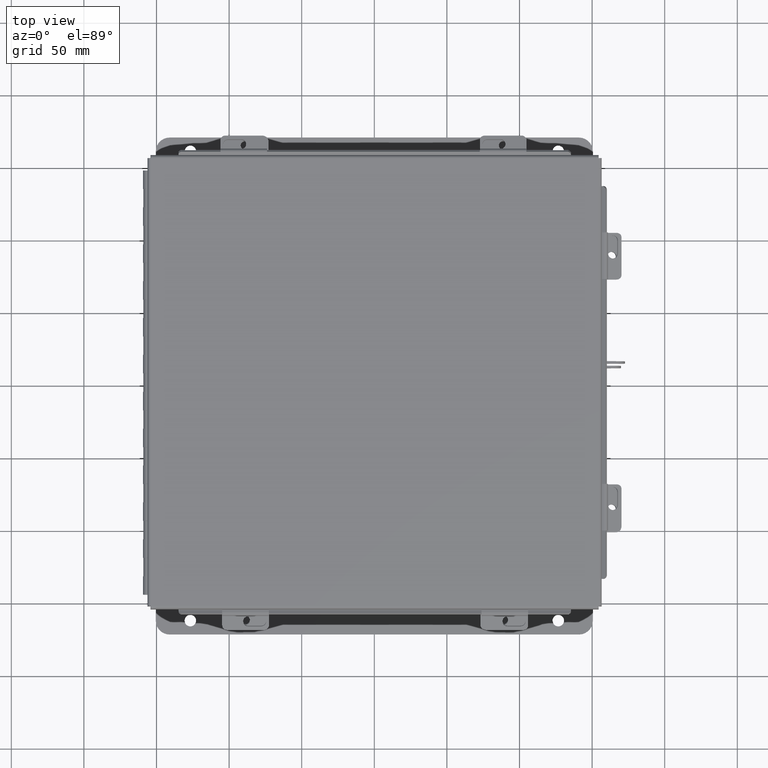
[diagram: clean part render]
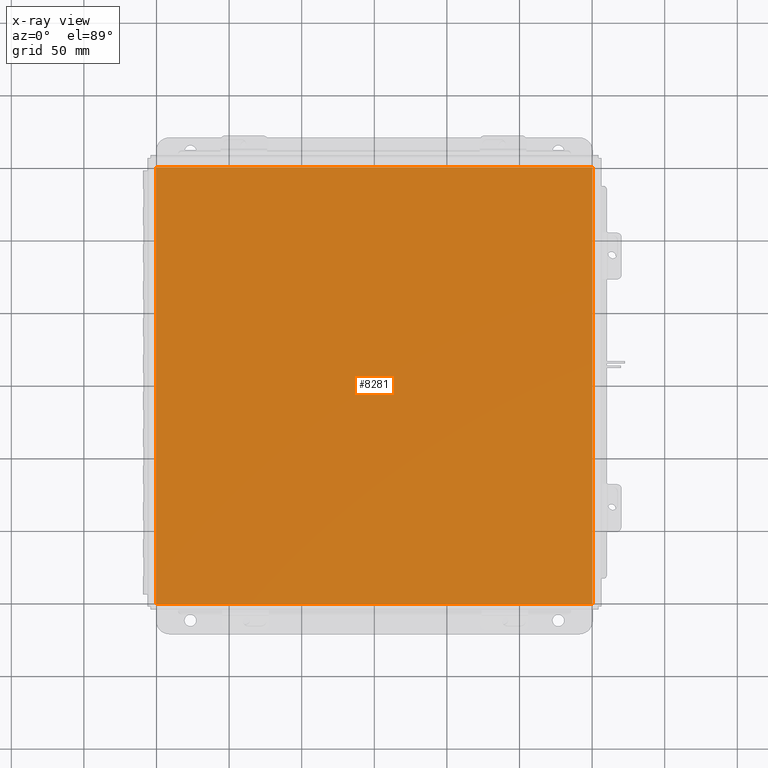
[diagram: x-ray — body ghosted, one internal face saturated and labeled with its STEP entity id]
A machine part, top view, then the same camera in x-ray: the body is ghosted and one INTERNAL B-rep face — a face not visible from any outside direction — is saturated and labeled: STEP entity #8281.
In plain terms, the highlighted planar face has unit normal (0, 0, -1).
Its self-contained STEP definition (entity closure, byte-faithful):
#100 = VERTEX_POINT ( 'NONE', #13320 ) ;
#1085 = CARTESIAN_POINT ( 'NONE',  ( 5.912300000000002800, 5.925300000000000000, 1.075665147505303600E-015 ) ) ;
#1401 = CARTESIAN_POINT ( 'NONE',  ( 0.0000000000000000000, 0.0000000000000000000, 0.0000000000000000000 ) ) ;
#2105 = LINE ( 'NONE', #2941, #5337 ) ;
#2297 = VECTOR ( 'NONE', #13931, 39.37007874015748100 ) ;
#2762 = DIRECTION ( 'NONE',  ( -1.000000000000000000, 0.0000000000000000000, -0.0000000000000000000 ) ) ;
#2941 = CARTESIAN_POINT ( 'NONE',  ( -5.912299999999998300, -5.925300000000000000, -9.817578727230945900E-016 ) ) ;
#2981 = AXIS2_PLACEMENT_3D ( 'NONE', #1401, #10993, #2762 ) ;
#3222 = ORIENTED_EDGE ( 'NONE', *, *, #3330, .T. ) ;
#3330 = EDGE_CURVE ( 'NONE', #100, #14282, #13700, .T. ) ;
#3487 = VERTEX_POINT ( 'NONE', #13869 ) ;
#3692 = FACE_OUTER_BOUND ( 'NONE', #13298, .T. ) ;
#4488 = DIRECTION ( 'NONE',  ( -1.000000000000000000, -0.0000000000000000000, -0.0000000000000000000 ) ) ;
#5093 = EDGE_CURVE ( 'NONE', #3487, #17577, #15733, .T. ) ;
#5121 = VECTOR ( 'NONE', #9282, 39.37007874015748100 ) ;
#5219 = CARTESIAN_POINT ( 'NONE',  ( -5.912299999999998300, 5.925300000000000000, -8.537024980200822600E-018 ) ) ;
#5337 = VECTOR ( 'NONE', #5693, 39.37007874015748100 ) ;
#5693 = DIRECTION ( 'NONE',  ( -0.0000000000000000000, 1.000000000000000000, 8.208677865577646300E-017 ) ) ;
#5807 = CARTESIAN_POINT ( 'NONE',  ( -5.999999999999998200, 5.925300000000000000, 0.0000000000000000000 ) ) ;
#6438 = PLANE ( 'NONE',  #2981 ) ;
#8281 = ADVANCED_FACE ( 'NONE', ( #3692 ), #6438, .F. ) ;
#8353 = VECTOR ( 'NONE', #4488, 39.37007874015748100 ) ;
#8759 = LINE ( 'NONE', #1085, #5121 ) ;
#9282 = DIRECTION ( 'NONE',  ( -0.0000000000000000000, -1.000000000000000000, -8.208677865577646300E-017 ) ) ;
#10993 = DIRECTION ( 'NONE',  ( 0.0000000000000000000, 0.0000000000000000000, -1.000000000000000000 ) ) ;
#11847 = ORIENTED_EDGE ( 'NONE', *, *, #17821, .F. ) ;
#13298 = EDGE_LOOP ( 'NONE', ( #13563, #14166, #11847, #3222 ) ) ;
#13320 = CARTESIAN_POINT ( 'NONE',  ( -5.912299999999998300, -5.925299999999998200, -9.817578727230945900E-016 ) ) ;
#13563 = ORIENTED_EDGE ( 'NONE', *, *, #17568, .F. ) ;
#13700 = LINE ( 'NONE', #16582, #2297 ) ;
#13869 = CARTESIAN_POINT ( 'NONE',  ( 5.912300000000002800, 5.925299999999997300, 1.075665147505303600E-015 ) ) ;
#13931 = DIRECTION ( 'NONE',  ( 1.000000000000000000, 0.0000000000000000000, 0.0000000000000000000 ) ) ;
#14166 = ORIENTED_EDGE ( 'NONE', *, *, #5093, .T. ) ;
#14282 = VERTEX_POINT ( 'NONE', #14607 ) ;
#14607 = CARTESIAN_POINT ( 'NONE',  ( 5.912300000000002800, -5.925300000000000000, 1.024442997624098700E-016 ) ) ;
#15733 = LINE ( 'NONE', #5807, #8353 ) ;
#16582 = CARTESIAN_POINT ( 'NONE',  ( -5.999999999999998200, -5.925300000000000000, 0.0000000000000000000 ) ) ;
#17568 = EDGE_CURVE ( 'NONE', #3487, #14282, #8759, .T. ) ;
#17577 = VERTEX_POINT ( 'NONE', #5219 ) ;
#17821 = EDGE_CURVE ( 'NONE', #100, #17577, #2105, .T. ) ;